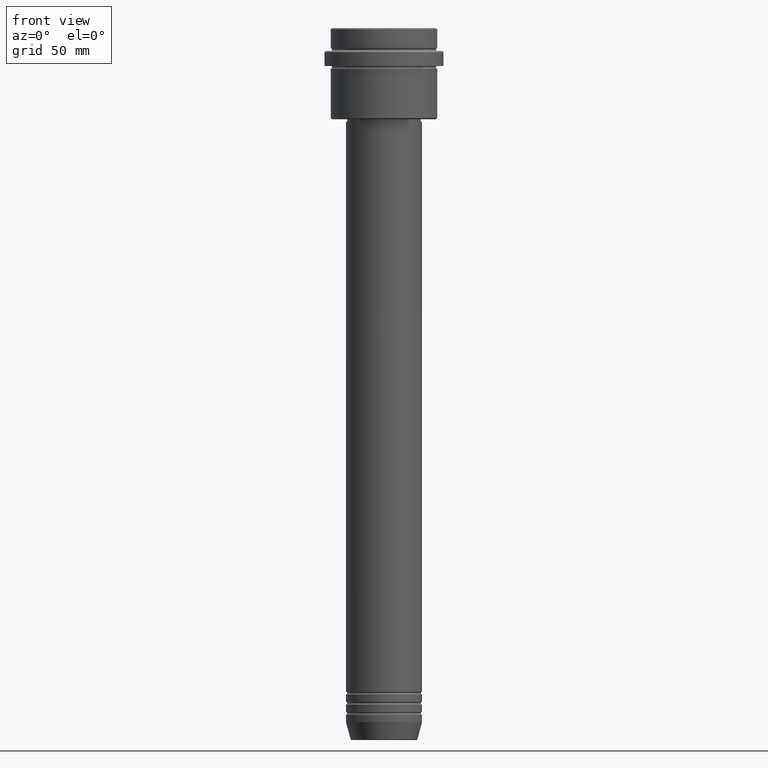
[diagram: clean part render]
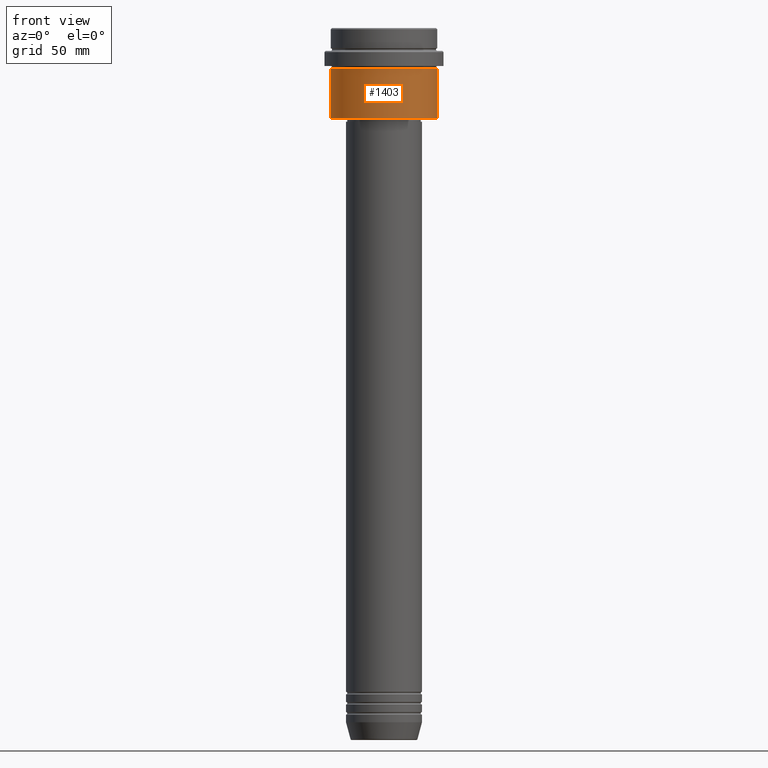
[diagram: same view with one face highlighted and labeled with its STEP entity id]
A machine part, front view. The second image highlights one B-rep face of the part: STEP entity #1403.
In plain terms, the highlighted cylindrical surface (partial cylindrical patch) has radius 21 mm, axis along (-0, -0, 1).
Its self-contained STEP definition (entity closure, byte-faithful):
#15 = EDGE_CURVE ( 'NONE', #1319, #1350, #980, .T. ) ;
#50 = FACE_OUTER_BOUND ( 'NONE', #1276, .T. ) ;
#92 = DIRECTION ( 'NONE',  ( -1.000000000000000000, 0.000000000000000000, 0.000000000000000000 ) ) ;
#115 = EDGE_CURVE ( 'NONE', #1350, #736, #1041, .T. ) ;
#149 = VERTEX_POINT ( 'NONE', #1155 ) ;
#192 = DIRECTION ( 'NONE',  ( 1.000000000000000000, 0.000000000000000000, 0.000000000000000000 ) ) ;
#202 = CARTESIAN_POINT ( 'NONE',  ( 0.000000000000000000, 0.000000000000000000, -35.49999999999993605 ) ) ;
#258 = CARTESIAN_POINT ( 'NONE',  ( 21.00000000000000000, 0.000000000000000000, -35.49999999999993605 ) ) ;
#325 = CARTESIAN_POINT ( 'NONE',  ( -21.00000000000000000, 2.571758278209441661E-15, -35.49999999999993605 ) ) ;
#332 = ORIENTED_EDGE ( 'NONE', *, *, #15, .T. ) ;
#357 = CYLINDRICAL_SURFACE ( 'NONE', #440, 21.00000000000000000 ) ;
#380 = CARTESIAN_POINT ( 'NONE',  ( 21.00000000000000000, 0.000000000000000000, 0.000000000000000000 ) ) ;
#393 = CARTESIAN_POINT ( 'NONE',  ( -21.00000000000000000, 2.571758278209441661E-15, 0.000000000000000000 ) ) ;
#440 = AXIS2_PLACEMENT_3D ( 'NONE', #1034, #796, #689 ) ;
#627 = DIRECTION ( 'NONE',  ( -0.000000000000000000, -0.000000000000000000, 1.000000000000000000 ) ) ;
#689 = DIRECTION ( 'NONE',  ( 1.000000000000000000, 0.000000000000000000, 0.000000000000000000 ) ) ;
#693 = ORIENTED_EDGE ( 'NONE', *, *, #115, .T. ) ;
#705 = AXIS2_PLACEMENT_3D ( 'NONE', #1176, #723, #192 ) ;
#723 = DIRECTION ( 'NONE',  ( -0.000000000000000000, -0.000000000000000000, 1.000000000000000000 ) ) ;
#729 = VECTOR ( 'NONE', #828, 1000.000000000000000 ) ;
#736 = VERTEX_POINT ( 'NONE', #902 ) ;
#796 = DIRECTION ( 'NONE',  ( -0.000000000000000000, -0.000000000000000000, 1.000000000000000000 ) ) ;
#798 = EDGE_CURVE ( 'NONE', #149, #736, #1257, .T. ) ;
#824 = ORIENTED_EDGE ( 'NONE', *, *, #798, .F. ) ;
#828 = DIRECTION ( 'NONE',  ( -0.000000000000000000, -0.000000000000000000, 1.000000000000000000 ) ) ;
#830 = DIRECTION ( 'NONE',  ( -0.000000000000000000, -0.000000000000000000, 1.000000000000000000 ) ) ;
#902 = CARTESIAN_POINT ( 'NONE',  ( 21.00000000000000000, 0.000000000000000000, -16.00000000000000355 ) ) ;
#920 = ORIENTED_EDGE ( 'NONE', *, *, #1202, .F. ) ;
#947 = VECTOR ( 'NONE', #830, 1000.000000000000000 ) ;
#980 = CIRCLE ( 'NONE', #1132, 21.00000000000000000 ) ;
#1034 = CARTESIAN_POINT ( 'NONE',  ( 0.000000000000000000, 0.000000000000000000, 0.000000000000000000 ) ) ;
#1041 = LINE ( 'NONE', #380, #729 ) ;
#1132 = AXIS2_PLACEMENT_3D ( 'NONE', #202, #627, #92 ) ;
#1155 = CARTESIAN_POINT ( 'NONE',  ( -21.00000000000000000, 2.571758278209441661E-15, -16.00000000000000355 ) ) ;
#1176 = CARTESIAN_POINT ( 'NONE',  ( 0.000000000000000000, 0.000000000000000000, -16.00000000000000355 ) ) ;
#1202 = EDGE_CURVE ( 'NONE', #1319, #149, #1375, .T. ) ;
#1257 = CIRCLE ( 'NONE', #705, 21.00000000000000000 ) ;
#1276 = EDGE_LOOP ( 'NONE', ( #920, #332, #693, #824 ) ) ;
#1319 = VERTEX_POINT ( 'NONE', #325 ) ;
#1350 = VERTEX_POINT ( 'NONE', #258 ) ;
#1375 = LINE ( 'NONE', #393, #947 ) ;
#1403 = ADVANCED_FACE ( 'NONE', ( #50 ), #357, .T. ) ;